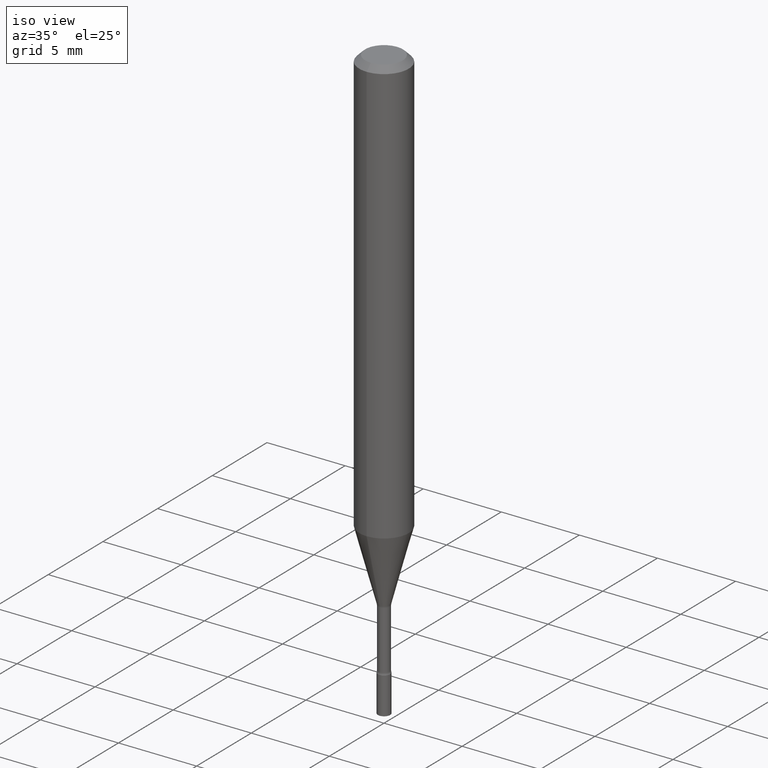
[diagram: clean part render]
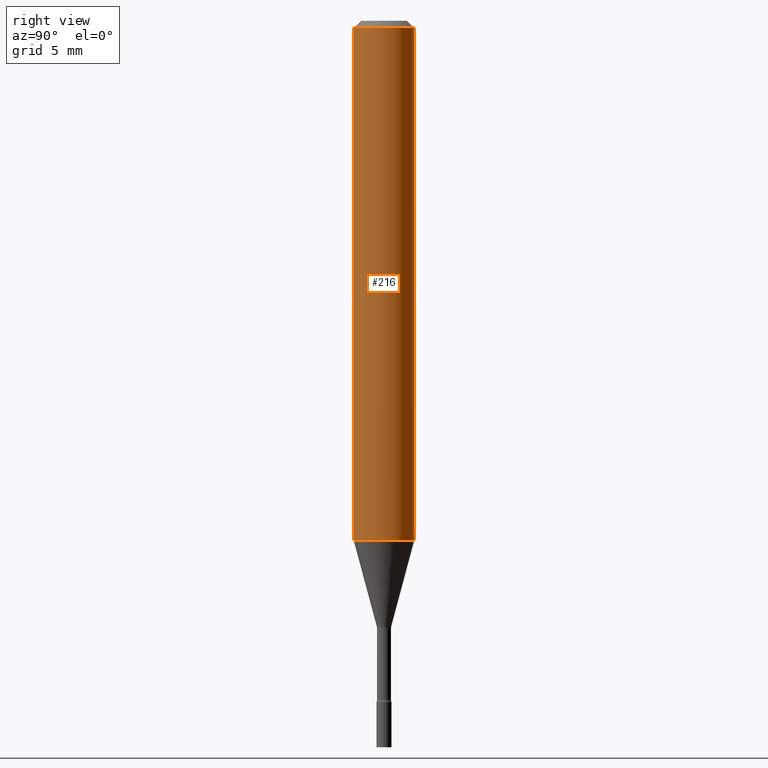
[diagram: tour spotlight — one face highlighted and labeled with its STEP entity id]
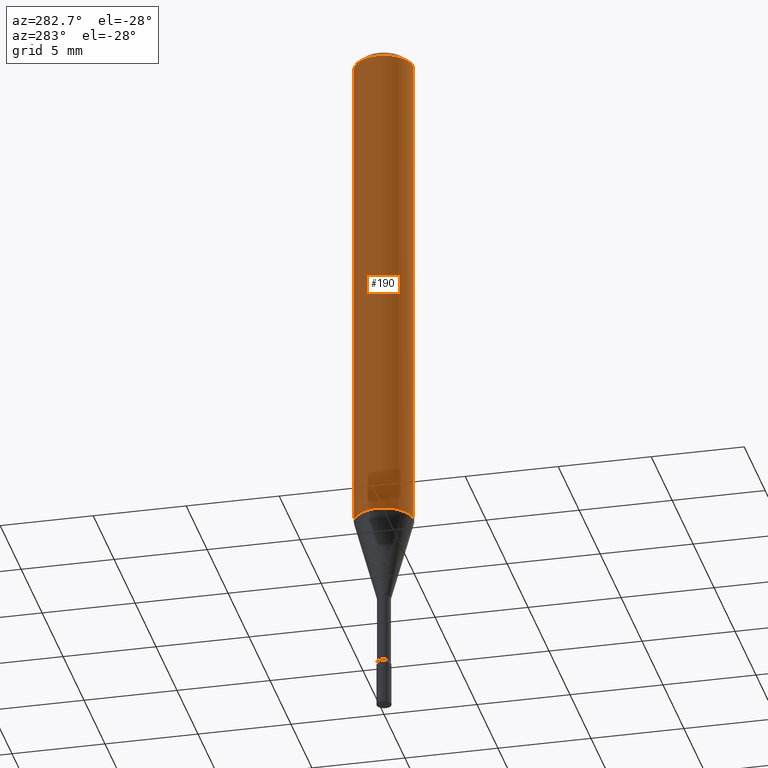
[diagram: tour spotlight — one face highlighted and labeled with its STEP entity id]
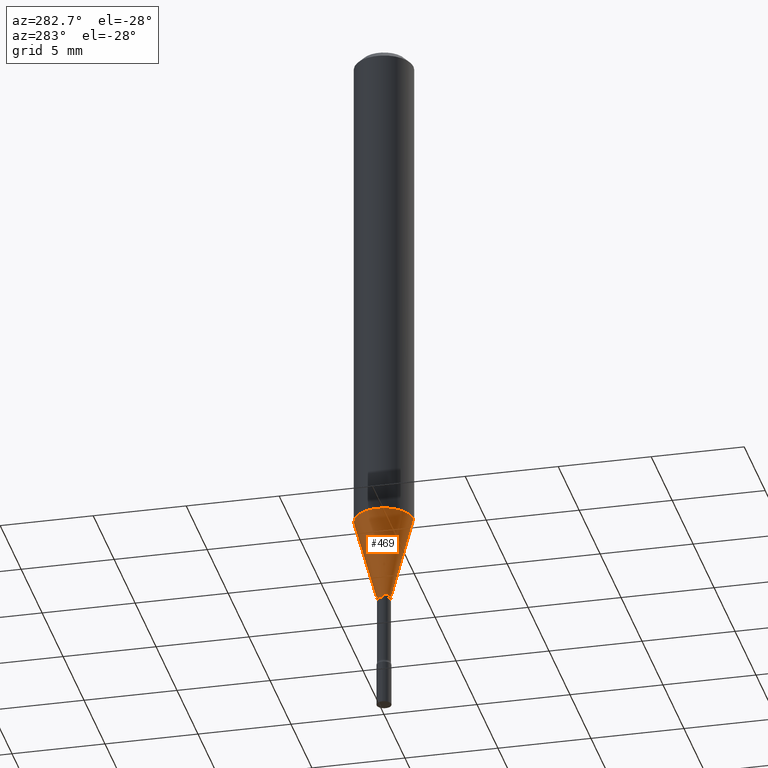
[diagram: tour spotlight — one face highlighted and labeled with its STEP entity id]
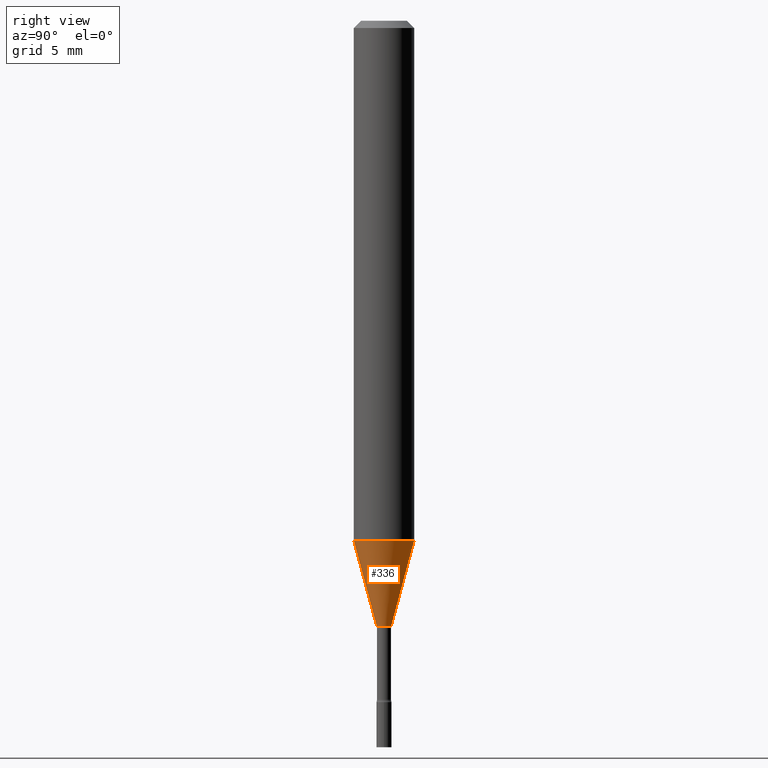
[diagram: tour spotlight — one face highlighted and labeled with its STEP entity id]
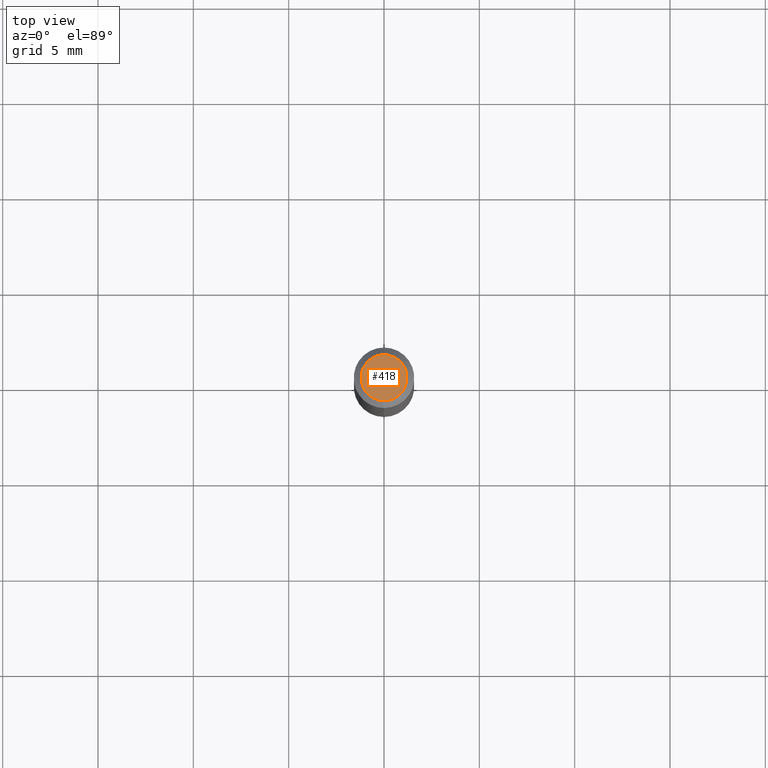
[diagram: tour spotlight — one face highlighted and labeled with its STEP entity id]
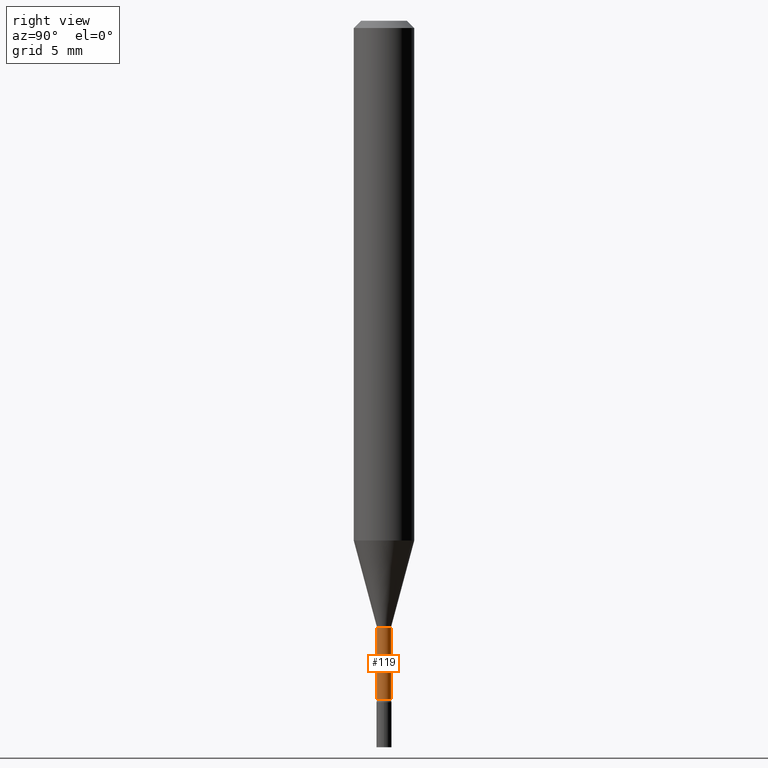
[diagram: tour spotlight — one face highlighted and labeled with its STEP entity id]
A machine part: a face-by-face anatomy tour. The part has 18 B-rep faces; the first image is the clean iso view, then the 6 largest visible faces are spotlighted one at a time (largest first), each with its STEP entity span.

Face 1 — right view, entity #216. In plain terms, the highlighted cylindrical surface (edge-blend (fillet) strip) has radius 1.5875 mm, axis along (-0, 0, 1).
Definition (entity closure, byte-faithful):
#2 = DIRECTION ( 'NONE',  ( -2.445472227515732089E-29, 3.491476439303002674E-15, 1.000000000000000000 ) ) ;
#19 = CIRCLE ( 'NONE', #389, 0.06250000000000000000 ) ;
#28 = EDGE_CURVE ( 'NONE', #59, #220, #60, .T. ) ;
#31 = DIRECTION ( 'NONE',  ( -2.445472227515732089E-29, 3.491476439303002674E-15, 1.000000000000000000 ) ) ;
#36 = DIRECTION ( 'NONE',  ( -6.982962677686265922E-15, -1.000000000000000000, 4.370956789862821150E-15 ) ) ;
#52 = DIRECTION ( 'NONE',  ( -2.445472227515732369E-29, 3.491476439303002674E-15, 1.000000000000000000 ) ) ;
#53 = ORIENTED_EDGE ( 'NONE', *, *, #322, .F. ) ;
#59 = VERTEX_POINT ( 'NONE', #150 ) ;
#60 = CIRCLE ( 'NONE', #347, 0.06250000000000000000 ) ;
#85 = EDGE_CURVE ( 'NONE', #377, #254, #19, .T. ) ;
#106 = EDGE_CURVE ( 'NONE', #254, #220, #391, .T. ) ;
#109 = VECTOR ( 'NONE', #52, 39.37007874015748143 ) ;
#114 = ORIENTED_EDGE ( 'NONE', *, *, #85, .T. ) ;
#123 = DIRECTION ( 'NONE',  ( -6.982962677686265922E-15, -1.000000000000000000, 3.491476439303002674E-15 ) ) ;
#135 = ORIENTED_EDGE ( 'NONE', *, *, #106, .T. ) ;
#140 = EDGE_LOOP ( 'NONE', ( #114, #135, #181, #53 ) ) ;
#150 = CARTESIAN_POINT ( 'NONE',  ( -4.364351673553912750E-16, -0.06250000000000005551, -0.01499999999999981209 ) ) ;
#151 = VECTOR ( 'NONE', #512, 39.37007874015748143 ) ;
#162 = FACE_OUTER_BOUND ( 'NONE', #140, .T. ) ;
#181 = ORIENTED_EDGE ( 'NONE', *, *, #28, .F. ) ;
#205 = CARTESIAN_POINT ( 'NONE',  ( -4.364351673553916201E-16, -0.06250000000000000000, 2.182172774564376671E-16 ) ) ;
#207 = CARTESIAN_POINT ( 'NONE',  ( 0.000000000000000000, 0.000000000000000000, 0.000000000000000000 ) ) ;
#216 = ADVANCED_FACE ( 'NONE', ( #162 ), #320, .T. ) ;
#220 = VERTEX_POINT ( 'NONE', #447 ) ;
#229 = DIRECTION ( 'NONE',  ( -2.445472227515732089E-29, 3.491476439303002674E-15, 1.000000000000000000 ) ) ;
#230 = CARTESIAN_POINT ( 'NONE',  ( -4.364351673553655384E-16, -0.06250000000000376088, -1.073048163777072794 ) ) ;
#248 = CARTESIAN_POINT ( 'NONE',  ( 4.440892098500886486E-16, 0.06249999999999623218, -1.073048163777073238 ) ) ;
#254 = VERTEX_POINT ( 'NONE', #248 ) ;
#271 = CARTESIAN_POINT ( 'NONE',  ( 2.624109483303584548E-29, -3.746522382064999961E-15, -1.073048163777073016 ) ) ;
#303 = DIRECTION ( 'NONE',  ( -6.982962677686265922E-15, -1.000000000000000000, 3.483106191921935554E-15 ) ) ;
#320 = CYLINDRICAL_SURFACE ( 'NONE', #358, 0.06250000000000000000 ) ;
#322 = EDGE_CURVE ( 'NONE', #377, #59, #442, .T. ) ;
#347 = AXIS2_PLACEMENT_3D ( 'NONE', #504, #31, #303 ) ;
#350 = CARTESIAN_POINT ( 'NONE',  ( 4.440892098500625669E-16, 0.06250000000000000000, -2.182172774564376671E-16 ) ) ;
#358 = AXIS2_PLACEMENT_3D ( 'NONE', #207, #2, #123 ) ;
#377 = VERTEX_POINT ( 'NONE', #230 ) ;
#389 = AXIS2_PLACEMENT_3D ( 'NONE', #271, #229, #36 ) ;
#391 = LINE ( 'NONE', #350, #151 ) ;
#442 = LINE ( 'NONE', #205, #109 ) ;
#447 = CARTESIAN_POINT ( 'NONE',  ( 4.440892098500889444E-16, 0.06249999999999995143, -0.01500000000000024751 ) ) ;
#504 = CARTESIAN_POINT ( 'NONE',  ( 3.668208341273605262E-31, -5.237214658954514982E-17, -0.01500000000000003067 ) ) ;
#512 = DIRECTION ( 'NONE',  ( -2.445472227515732369E-29, 3.491476439303002674E-15, 1.000000000000000000 ) ) ;

Face 2 — auxiliary view, entity #190. In plain terms, the highlighted cylindrical surface (edge-blend (fillet) strip) has radius 1.5875 mm, axis along (-0, 0, 1).
Definition (entity closure, byte-faithful):
#1 = CARTESIAN_POINT ( 'NONE',  ( 0.000000000000000000, 0.000000000000000000, 0.000000000000000000 ) ) ;
#24 = CIRCLE ( 'NONE', #348, 0.06250000000000000000 ) ;
#47 = DIRECTION ( 'NONE',  ( -2.445472227515732089E-29, 3.491476439303002674E-15, 1.000000000000000000 ) ) ;
#52 = DIRECTION ( 'NONE',  ( -2.445472227515732369E-29, 3.491476439303002674E-15, 1.000000000000000000 ) ) ;
#59 = VERTEX_POINT ( 'NONE', #150 ) ;
#63 = ORIENTED_EDGE ( 'NONE', *, *, #161, .T. ) ;
#83 = DIRECTION ( 'NONE',  ( -2.445472227515732089E-29, 3.491476439303002674E-15, 1.000000000000000000 ) ) ;
#90 = CARTESIAN_POINT ( 'NONE',  ( 3.668208341273605262E-31, -5.237214658954514982E-17, -0.01500000000000003067 ) ) ;
#106 = EDGE_CURVE ( 'NONE', #254, #220, #391, .T. ) ;
#109 = VECTOR ( 'NONE', #52, 39.37007874015748143 ) ;
#150 = CARTESIAN_POINT ( 'NONE',  ( -4.364351673553912750E-16, -0.06250000000000005551, -0.01499999999999981209 ) ) ;
#151 = VECTOR ( 'NONE', #512, 39.37007874015748143 ) ;
#161 = EDGE_CURVE ( 'NONE', #254, #377, #233, .T. ) ;
#190 = ADVANCED_FACE ( 'NONE', ( #401 ), #437, .T. ) ;
#205 = CARTESIAN_POINT ( 'NONE',  ( -4.364351673553916201E-16, -0.06250000000000000000, 2.182172774564376671E-16 ) ) ;
#219 = EDGE_LOOP ( 'NONE', ( #374, #63, #259, #410 ) ) ;
#220 = VERTEX_POINT ( 'NONE', #447 ) ;
#226 = EDGE_CURVE ( 'NONE', #220, #59, #24, .T. ) ;
#230 = CARTESIAN_POINT ( 'NONE',  ( -4.364351673553655384E-16, -0.06250000000000376088, -1.073048163777072794 ) ) ;
#233 = CIRCLE ( 'NONE', #467, 0.06250000000000000000 ) ;
#239 = DIRECTION ( 'NONE',  ( -6.982962677686265922E-15, -1.000000000000000000, 3.483106191921935554E-15 ) ) ;
#248 = CARTESIAN_POINT ( 'NONE',  ( 4.440892098500886486E-16, 0.06249999999999623218, -1.073048163777073238 ) ) ;
#254 = VERTEX_POINT ( 'NONE', #248 ) ;
#259 = ORIENTED_EDGE ( 'NONE', *, *, #322, .T. ) ;
#275 = DIRECTION ( 'NONE',  ( -2.445472227515732089E-29, 3.491476439303002674E-15, 1.000000000000000000 ) ) ;
#280 = CARTESIAN_POINT ( 'NONE',  ( 2.624109483303584548E-29, -3.746522382064999961E-15, -1.073048163777073016 ) ) ;
#322 = EDGE_CURVE ( 'NONE', #377, #59, #442, .T. ) ;
#348 = AXIS2_PLACEMENT_3D ( 'NONE', #90, #47, #239 ) ;
#350 = CARTESIAN_POINT ( 'NONE',  ( 4.440892098500625669E-16, 0.06250000000000000000, -2.182172774564376671E-16 ) ) ;
#374 = ORIENTED_EDGE ( 'NONE', *, *, #106, .F. ) ;
#377 = VERTEX_POINT ( 'NONE', #230 ) ;
#391 = LINE ( 'NONE', #350, #151 ) ;
#401 = FACE_OUTER_BOUND ( 'NONE', #219, .T. ) ;
#410 = ORIENTED_EDGE ( 'NONE', *, *, #226, .F. ) ;
#435 = DIRECTION ( 'NONE',  ( -6.982962677686265922E-15, -1.000000000000000000, 4.370956789862821150E-15 ) ) ;
#437 = CYLINDRICAL_SURFACE ( 'NONE', #509, 0.06250000000000000000 ) ;
#442 = LINE ( 'NONE', #205, #109 ) ;
#447 = CARTESIAN_POINT ( 'NONE',  ( 4.440892098500889444E-16, 0.06249999999999995143, -0.01500000000000024751 ) ) ;
#467 = AXIS2_PLACEMENT_3D ( 'NONE', #280, #83, #435 ) ;
#509 = AXIS2_PLACEMENT_3D ( 'NONE', #1, #275, #517 ) ;
#512 = DIRECTION ( 'NONE',  ( -2.445472227515732369E-29, 3.491476439303002674E-15, 1.000000000000000000 ) ) ;
#517 = DIRECTION ( 'NONE',  ( -6.982962677686265922E-15, -1.000000000000000000, 3.491476439303002674E-15 ) ) ;

Face 3 — auxiliary view, entity #469. In plain terms, the highlighted conical surface has half-angle 15 deg.
Definition (entity closure, byte-faithful):
#4 = EDGE_CURVE ( 'NONE', #138, #295, #76, .T. ) ;
#15 = EDGE_LOOP ( 'NONE', ( #503, #497, #340, #147 ) ) ;
#38 = CARTESIAN_POINT ( 'NONE',  ( 2.755524256971568781E-16, 0.01506111260565961597, -1.250092501787273269 ) ) ;
#39 = DIRECTION ( 'NONE',  ( -1.807323732225328562E-15, -0.2588190451025179639, 0.9659258262890689783 ) ) ;
#50 = CARTESIAN_POINT ( 'NONE',  ( -1.051711872097511524E-16, -0.01506111260566834510, -1.250092501787273269 ) ) ;
#70 = DIRECTION ( 'NONE',  ( -6.982962677686265922E-15, -1.000000000000000000, 0.000000000000000000 ) ) ;
#74 = DIRECTION ( 'NONE',  ( -2.445472227515732089E-29, 3.491476439303002674E-15, 1.000000000000000000 ) ) ;
#76 = CIRCLE ( 'NONE', #369, 0.01506111260566398054 ) ;
#77 = CARTESIAN_POINT ( 'NONE',  ( 3.057066494946437721E-29, -4.364668516939611212E-15, -1.250092501787273269 ) ) ;
#83 = DIRECTION ( 'NONE',  ( -2.445472227515732089E-29, 3.491476439303002674E-15, 1.000000000000000000 ) ) ;
#92 = CARTESIAN_POINT ( 'NONE',  ( -1.051711872097511524E-16, -0.01506111260566834510, -1.250092501787273269 ) ) ;
#115 = LINE ( 'NONE', #440, #368 ) ;
#138 = VERTEX_POINT ( 'NONE', #38 ) ;
#144 = AXIS2_PLACEMENT_3D ( 'NONE', #77, #235, #392 ) ;
#147 = ORIENTED_EDGE ( 'NONE', *, *, #161, .F. ) ;
#148 = CARTESIAN_POINT ( 'NONE',  ( 3.057066494946437721E-29, -4.364668516939611212E-15, -1.250092501787273269 ) ) ;
#161 = EDGE_CURVE ( 'NONE', #254, #377, #233, .T. ) ;
#168 = VECTOR ( 'NONE', #39, 39.37007874015749564 ) ;
#170 = LINE ( 'NONE', #50, #168 ) ;
#230 = CARTESIAN_POINT ( 'NONE',  ( -4.364351673553655384E-16, -0.06250000000000376088, -1.073048163777072794 ) ) ;
#233 = CIRCLE ( 'NONE', #467, 0.06250000000000000000 ) ;
#235 = DIRECTION ( 'NONE',  ( -2.445472227515732089E-29, 3.491476439303002674E-15, 1.000000000000000000 ) ) ;
#248 = CARTESIAN_POINT ( 'NONE',  ( 4.440892098500886486E-16, 0.06249999999999623218, -1.073048163777073238 ) ) ;
#254 = VERTEX_POINT ( 'NONE', #248 ) ;
#256 = EDGE_CURVE ( 'NONE', #295, #377, #170, .T. ) ;
#274 = DIRECTION ( 'NONE',  ( 1.839019923739599526E-15, 0.2588190451025248473, 0.9659258262890673130 ) ) ;
#280 = CARTESIAN_POINT ( 'NONE',  ( 2.624109483303584548E-29, -3.746522382064999961E-15, -1.073048163777073016 ) ) ;
#295 = VERTEX_POINT ( 'NONE', #92 ) ;
#340 = ORIENTED_EDGE ( 'NONE', *, *, #256, .T. ) ;
#349 = CONICAL_SURFACE ( 'NONE', #144, 0.01506111260566398054, 0.2617993877991501295 ) ;
#368 = VECTOR ( 'NONE', #274, 39.37007874015747433 ) ;
#369 = AXIS2_PLACEMENT_3D ( 'NONE', #148, #74, #70 ) ;
#377 = VERTEX_POINT ( 'NONE', #230 ) ;
#392 = DIRECTION ( 'NONE',  ( -6.982962677686265922E-15, -1.000000000000000000, 0.000000000000000000 ) ) ;
#432 = FACE_OUTER_BOUND ( 'NONE', #15, .T. ) ;
#435 = DIRECTION ( 'NONE',  ( -6.982962677686265922E-15, -1.000000000000000000, 4.370956789862821150E-15 ) ) ;
#440 = CARTESIAN_POINT ( 'NONE',  ( 1.070156415442247132E-16, 0.01506111260565961597, -1.250092501787273269 ) ) ;
#455 = EDGE_CURVE ( 'NONE', #138, #254, #115, .T. ) ;
#467 = AXIS2_PLACEMENT_3D ( 'NONE', #280, #83, #435 ) ;
#469 = ADVANCED_FACE ( 'NONE', ( #432 ), #349, .T. ) ;
#497 = ORIENTED_EDGE ( 'NONE', *, *, #4, .T. ) ;
#503 = ORIENTED_EDGE ( 'NONE', *, *, #455, .F. ) ;

Face 4 — right view, entity #336. In plain terms, the highlighted conical surface has half-angle 15 deg.
Definition (entity closure, byte-faithful):
#19 = CIRCLE ( 'NONE', #389, 0.06250000000000000000 ) ;
#21 = ORIENTED_EDGE ( 'NONE', *, *, #256, .F. ) ;
#36 = DIRECTION ( 'NONE',  ( -6.982962677686265922E-15, -1.000000000000000000, 4.370956789862821150E-15 ) ) ;
#38 = CARTESIAN_POINT ( 'NONE',  ( 2.755524256971568781E-16, 0.01506111260565961597, -1.250092501787273269 ) ) ;
#39 = DIRECTION ( 'NONE',  ( -1.807323732225328562E-15, -0.2588190451025179639, 0.9659258262890689783 ) ) ;
#50 = CARTESIAN_POINT ( 'NONE',  ( -1.051711872097511524E-16, -0.01506111260566834510, -1.250092501787273269 ) ) ;
#85 = EDGE_CURVE ( 'NONE', #377, #254, #19, .T. ) ;
#92 = CARTESIAN_POINT ( 'NONE',  ( -1.051711872097511524E-16, -0.01506111260566834510, -1.250092501787273269 ) ) ;
#115 = LINE ( 'NONE', #440, #368 ) ;
#133 = CARTESIAN_POINT ( 'NONE',  ( 3.057066494946437721E-29, -4.364668516939611212E-15, -1.250092501787273269 ) ) ;
#138 = VERTEX_POINT ( 'NONE', #38 ) ;
#168 = VECTOR ( 'NONE', #39, 39.37007874015749564 ) ;
#170 = LINE ( 'NONE', #50, #168 ) ;
#176 = CIRCLE ( 'NONE', #203, 0.01506111260566398054 ) ;
#203 = AXIS2_PLACEMENT_3D ( 'NONE', #404, #281, #279 ) ;
#209 = FACE_OUTER_BOUND ( 'NONE', #332, .T. ) ;
#222 = CONICAL_SURFACE ( 'NONE', #519, 0.01506111260566398054, 0.2617993877991501295 ) ;
#229 = DIRECTION ( 'NONE',  ( -2.445472227515732089E-29, 3.491476439303002674E-15, 1.000000000000000000 ) ) ;
#230 = CARTESIAN_POINT ( 'NONE',  ( -4.364351673553655384E-16, -0.06250000000000376088, -1.073048163777072794 ) ) ;
#248 = CARTESIAN_POINT ( 'NONE',  ( 4.440892098500886486E-16, 0.06249999999999623218, -1.073048163777073238 ) ) ;
#254 = VERTEX_POINT ( 'NONE', #248 ) ;
#256 = EDGE_CURVE ( 'NONE', #295, #377, #170, .T. ) ;
#271 = CARTESIAN_POINT ( 'NONE',  ( 2.624109483303584548E-29, -3.746522382064999961E-15, -1.073048163777073016 ) ) ;
#274 = DIRECTION ( 'NONE',  ( 1.839019923739599526E-15, 0.2588190451025248473, 0.9659258262890673130 ) ) ;
#279 = DIRECTION ( 'NONE',  ( -6.982962677686265922E-15, -1.000000000000000000, 0.000000000000000000 ) ) ;
#281 = DIRECTION ( 'NONE',  ( -2.445472227515732089E-29, 3.491476439303002674E-15, 1.000000000000000000 ) ) ;
#287 = EDGE_CURVE ( 'NONE', #295, #138, #176, .T. ) ;
#291 = ORIENTED_EDGE ( 'NONE', *, *, #85, .F. ) ;
#295 = VERTEX_POINT ( 'NONE', #92 ) ;
#324 = DIRECTION ( 'NONE',  ( -6.982962677686265922E-15, -1.000000000000000000, 0.000000000000000000 ) ) ;
#327 = DIRECTION ( 'NONE',  ( -2.445472227515732089E-29, 3.491476439303002674E-15, 1.000000000000000000 ) ) ;
#332 = EDGE_LOOP ( 'NONE', ( #419, #413, #291, #21 ) ) ;
#336 = ADVANCED_FACE ( 'NONE', ( #209 ), #222, .T. ) ;
#368 = VECTOR ( 'NONE', #274, 39.37007874015747433 ) ;
#377 = VERTEX_POINT ( 'NONE', #230 ) ;
#389 = AXIS2_PLACEMENT_3D ( 'NONE', #271, #229, #36 ) ;
#404 = CARTESIAN_POINT ( 'NONE',  ( 3.057066494946437721E-29, -4.364668516939611212E-15, -1.250092501787273269 ) ) ;
#413 = ORIENTED_EDGE ( 'NONE', *, *, #455, .T. ) ;
#419 = ORIENTED_EDGE ( 'NONE', *, *, #287, .T. ) ;
#440 = CARTESIAN_POINT ( 'NONE',  ( 1.070156415442247132E-16, 0.01506111260565961597, -1.250092501787273269 ) ) ;
#455 = EDGE_CURVE ( 'NONE', #138, #254, #115, .T. ) ;
#519 = AXIS2_PLACEMENT_3D ( 'NONE', #133, #327, #324 ) ;

Face 5 — top view, entity #418. In plain terms, the highlighted planar face has unit normal (0, -0, -1).
Definition (entity closure, byte-faithful):
#3 = DIRECTION ( 'NONE',  ( -6.982962677686266711E-15, -1.000000000000000000, 3.491476439303003069E-15 ) ) ;
#64 = ORIENTED_EDGE ( 'NONE', *, *, #325, .T. ) ;
#73 = CARTESIAN_POINT ( 'NONE',  ( 3.316907271900976096E-16, 0.04749999999999999362, -1.803022026949055047E-16 ) ) ;
#103 = CIRCLE ( 'NONE', #292, 0.04749999999999999362 ) ;
#160 = FACE_OUTER_BOUND ( 'NONE', #343, .T. ) ;
#163 = DIRECTION ( 'NONE',  ( -2.445472227515732089E-29, 3.491476439303002674E-15, 1.000000000000000000 ) ) ;
#165 = CARTESIAN_POINT ( 'NONE',  ( 7.070873529321127963E-46, -1.009530513376364482E-31, -2.891414365602579596E-17 ) ) ;
#177 = AXIS2_PLACEMENT_3D ( 'NONE', #73, #200, #270 ) ;
#200 = DIRECTION ( 'NONE',  ( 2.445472227515731808E-29, -3.491476439303002674E-15, -1.000000000000000000 ) ) ;
#210 = CIRCLE ( 'NONE', #501, 0.04749999999999999362 ) ;
#268 = EDGE_CURVE ( 'NONE', #449, #294, #103, .T. ) ;
#270 = DIRECTION ( 'NONE',  ( 6.982962677686265922E-15, 1.000000000000000000, -3.491476439303002674E-15 ) ) ;
#292 = AXIS2_PLACEMENT_3D ( 'NONE', #328, #163, #408 ) ;
#294 = VERTEX_POINT ( 'NONE', #321 ) ;
#319 = PLANE ( 'NONE',  #177 ) ;
#321 = CARTESIAN_POINT ( 'NONE',  ( 3.840629472727447874E-16, 0.04749999999999999362, -1.947592745229184365E-16 ) ) ;
#325 = EDGE_CURVE ( 'NONE', #294, #449, #210, .T. ) ;
#328 = CARTESIAN_POINT ( 'NONE',  ( 7.070873529321127963E-46, -1.009530513376364482E-31, -2.891414365602579596E-17 ) ) ;
#343 = EDGE_LOOP ( 'NONE', ( #64, #376 ) ) ;
#364 = DIRECTION ( 'NONE',  ( -2.445472227515732089E-29, 3.491476439303002674E-15, 1.000000000000000000 ) ) ;
#376 = ORIENTED_EDGE ( 'NONE', *, *, #268, .T. ) ;
#383 = CARTESIAN_POINT ( 'NONE',  ( -3.773273898774340269E-16, -0.04749999999999999362, 1.369309872108668077E-16 ) ) ;
#408 = DIRECTION ( 'NONE',  ( -6.982962677686266711E-15, -1.000000000000000000, 3.491476439303003069E-15 ) ) ;
#418 = ADVANCED_FACE ( 'NONE', ( #160 ), #319, .F. ) ;
#449 = VERTEX_POINT ( 'NONE', #383 ) ;
#501 = AXIS2_PLACEMENT_3D ( 'NONE', #165, #364, #3 ) ;

Face 6 — right view, entity #119. In plain terms, the highlighted cylindrical surface (edge-blend (fillet) strip) has radius 0.3696 mm, axis along (-0, 0, 1).
Definition (entity closure, byte-faithful):
#18 = ORIENTED_EDGE ( 'NONE', *, *, #139, .F. ) ;
#41 = DIRECTION ( 'NONE',  ( -2.445472227515732089E-29, 3.491476439303002674E-15, 1.000000000000000000 ) ) ;
#42 = CARTESIAN_POINT ( 'NONE',  ( 3.066560516747692945E-29, -4.378223425909886910E-15, -1.253974787463811191 ) ) ;
#44 = VECTOR ( 'NONE', #310, 39.37007874015748143 ) ;
#55 = CIRCLE ( 'NONE', #317, 0.01455000000000000217 ) ;
#61 = VECTOR ( 'NONE', #441, 39.37007874015748143 ) ;
#65 = CARTESIAN_POINT ( 'NONE',  ( 1.033839680530946048E-16, 0.01455000000000000737, -5.080098219185871194E-17 ) ) ;
#82 = EDGE_CURVE ( 'NONE', #373, #453, #107, .T. ) ;
#107 = LINE ( 'NONE', #65, #44 ) ;
#116 = CARTESIAN_POINT ( 'NONE',  ( 0.000000000000000000, 0.000000000000000000, 0.000000000000000000 ) ) ;
#117 = CARTESIAN_POINT ( 'NONE',  ( -1.016021069603352178E-16, -0.01455000000000000737, 5.080098219185871194E-17 ) ) ;
#119 = ADVANCED_FACE ( 'NONE', ( #184 ), #316, .T. ) ;
#139 = EDGE_CURVE ( 'NONE', #338, #335, #201, .T. ) ;
#143 = CIRCLE ( 'NONE', #298, 0.01455000000000001084 ) ;
#167 = CARTESIAN_POINT ( 'NONE',  ( -1.016021069603045262E-16, -0.01455000000000438061, -1.253974787463811191 ) ) ;
#178 = EDGE_CURVE ( 'NONE', #338, #373, #143, .T. ) ;
#184 = FACE_OUTER_BOUND ( 'NONE', #264, .T. ) ;
#201 = LINE ( 'NONE', #117, #61 ) ;
#242 = DIRECTION ( 'NONE',  ( -6.982962677686266711E-15, -1.000000000000000000, 0.000000000000000000 ) ) ;
#264 = EDGE_LOOP ( 'NONE', ( #305, #301, #296, #18 ) ) ;
#278 = DIRECTION ( 'NONE',  ( -6.982962677686266711E-15, -1.000000000000000000, 0.000000000000000000 ) ) ;
#283 = EDGE_CURVE ( 'NONE', #335, #453, #55, .T. ) ;
#296 = ORIENTED_EDGE ( 'NONE', *, *, #283, .F. ) ;
#298 = AXIS2_PLACEMENT_3D ( 'NONE', #357, #354, #278 ) ;
#301 = ORIENTED_EDGE ( 'NONE', *, *, #82, .T. ) ;
#305 = ORIENTED_EDGE ( 'NONE', *, *, #178, .T. ) ;
#310 = DIRECTION ( 'NONE',  ( -2.445472227515732369E-29, 3.491476439303002674E-15, 1.000000000000000000 ) ) ;
#316 = CYLINDRICAL_SURFACE ( 'NONE', #444, 0.01455000000000000737 ) ;
#317 = AXIS2_PLACEMENT_3D ( 'NONE', #42, #318, #242 ) ;
#318 = DIRECTION ( 'NONE',  ( -2.445472227515732089E-29, 3.491476439303002674E-15, 1.000000000000000000 ) ) ;
#335 = VERTEX_POINT ( 'NONE', #167 ) ;
#338 = VERTEX_POINT ( 'NONE', #485 ) ;
#354 = DIRECTION ( 'NONE',  ( -2.445472227515732089E-29, 3.491476439303002674E-15, 1.000000000000000000 ) ) ;
#356 = CARTESIAN_POINT ( 'NONE',  ( 1.033839680531288956E-16, 0.01454999999999562546, -1.253974787463811191 ) ) ;
#357 = CARTESIAN_POINT ( 'NONE',  ( 3.427932545932245899E-29, -4.894165464230526570E-15, -1.401746667724196538 ) ) ;
#373 = VERTEX_POINT ( 'NONE', #450 ) ;
#441 = DIRECTION ( 'NONE',  ( -2.445472227515732369E-29, 3.491476439303002674E-15, 1.000000000000000000 ) ) ;
#444 = AXIS2_PLACEMENT_3D ( 'NONE', #116, #41, #479 ) ;
#450 = CARTESIAN_POINT ( 'NONE',  ( 1.067590460479894681E-16, 0.01454999999999511892, -1.401746667724196538 ) ) ;
#453 = VERTEX_POINT ( 'NONE', #356 ) ;
#479 = DIRECTION ( 'NONE',  ( -6.982962677686265922E-15, -1.000000000000000000, 3.491476439303002674E-15 ) ) ;
#485 = CARTESIAN_POINT ( 'NONE',  ( -1.016021069603009763E-16, -0.01455000000000490450, -1.401746667724196538 ) ) ;